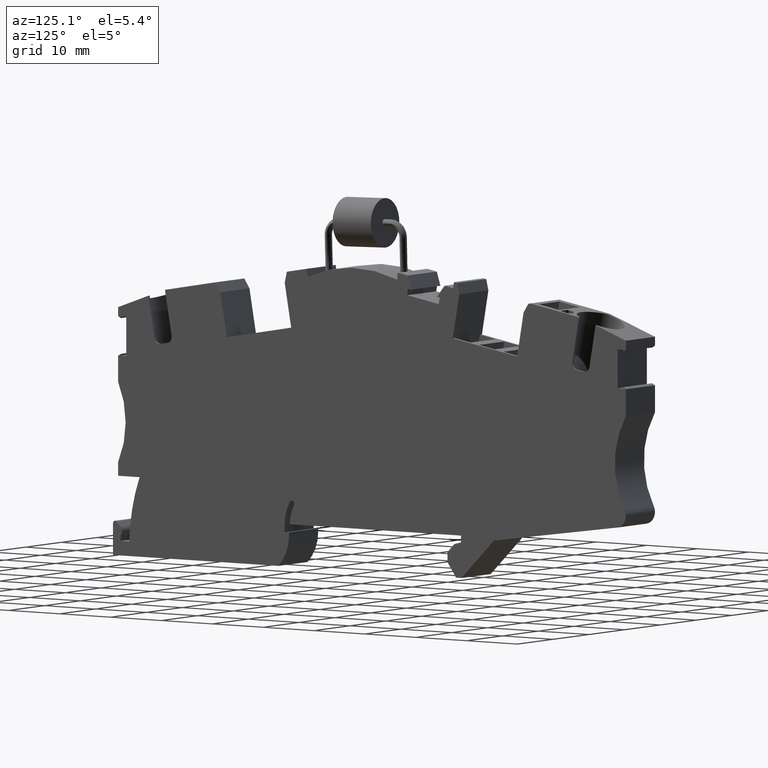
[diagram: clean part render]
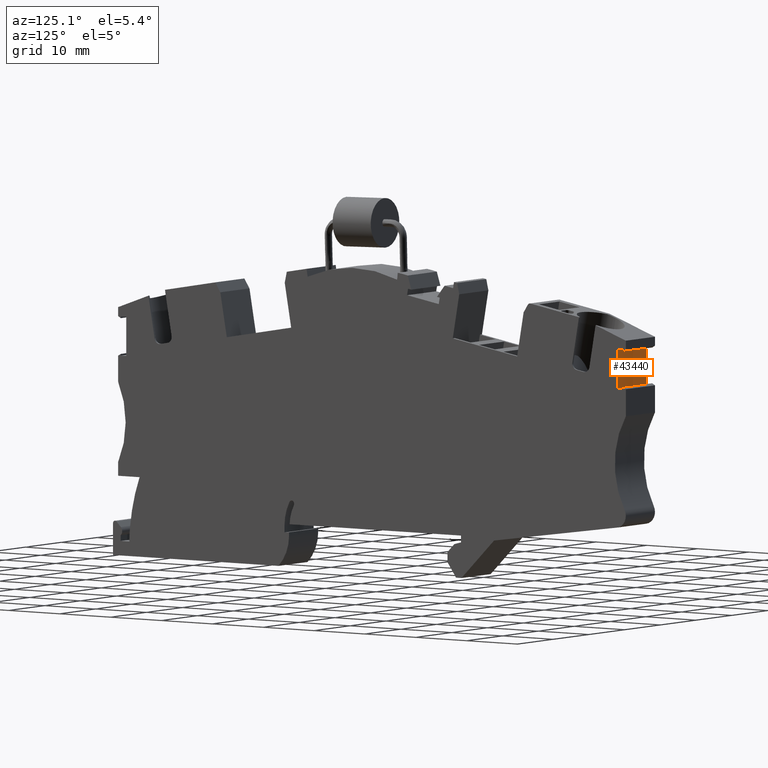
[diagram: same view with one face highlighted and labeled with its STEP entity id]
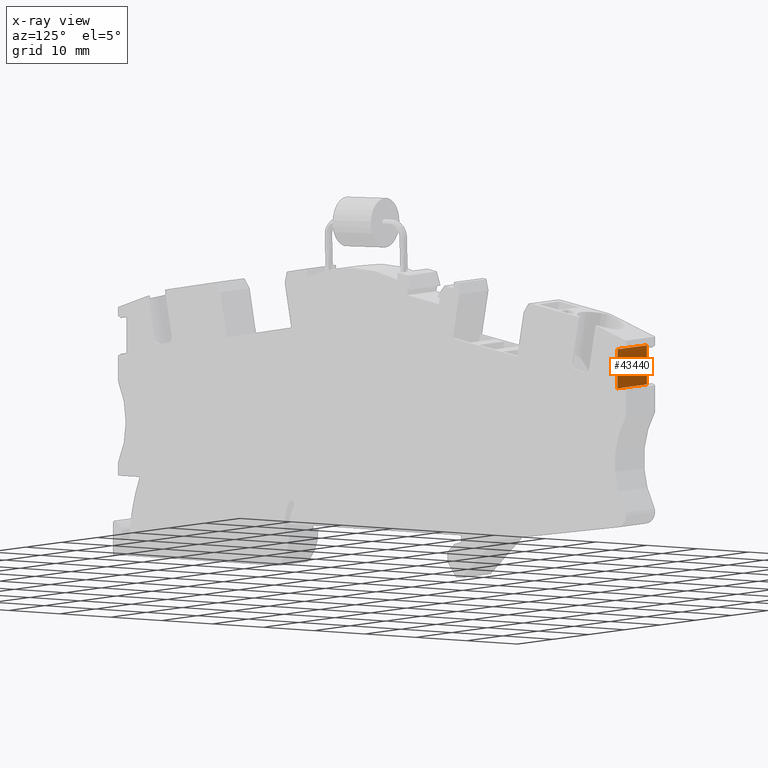
[diagram: x-ray of the same camera — body ghosted, the highlighted face saturated]
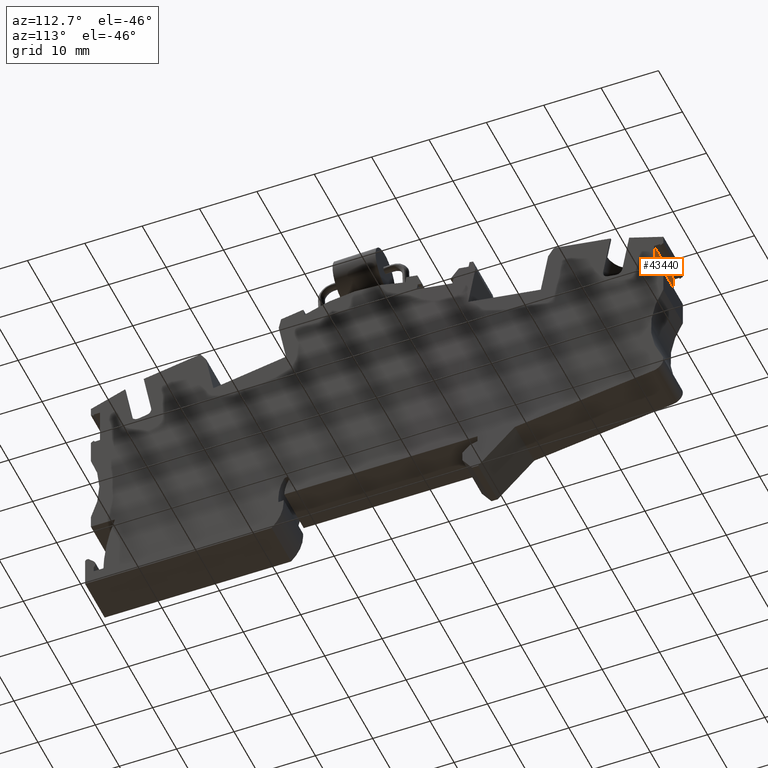
[diagram: same view with one face highlighted and labeled with its STEP entity id]
A machine part, auxiliary view. The second image highlights one B-rep face of the part: STEP entity #43440.
The next image is the same camera in x-ray: the body ghosted, the highlighted face saturated — about 0% of this face is hidden behind the body in this view.
A second angle (auxiliary view) of the same face is appended — the face is thin or edge-on in the first view.
In plain terms, the highlighted planar face has unit normal (-0, 1, 0).
Its self-contained STEP definition (entity closure, byte-faithful):
#4600=CARTESIAN_POINT('',(49.2158450383671,21.6638822171254,
-53.6700000196465));
#4610=VERTEX_POINT('',#4600);
#4640=CARTESIAN_POINT('',(53.0357719801401,-1.49213974509621E-13,
-53.6700000073441));
#4650=DIRECTION('',(-0.173648177667074,0.984807753012183,
-1.19904086659517E-14));
#4660=VECTOR('',#4650,1.);
#4670=LINE('',#4640,#4660);
#4680=CARTESIAN_POINT('',(48.1175203146228,27.8927912549278,
-53.6700000196466));
#4690=VERTEX_POINT('',#4680);
#4700=EDGE_CURVE('',#4610,#4690,#4670,.T.);
#9890=CARTESIAN_POINT('',(48.1175203145913,27.8927912549225,
-45.52000002222));
#9900=VERTEX_POINT('',#9890);
#9930=CARTESIAN_POINT('',(53.0357719804946,-2.19556284264399E-9,
-45.5200000220451));
#9940=DIRECTION('',(-0.173648177667074,0.984807753012183,
-6.17417228454542E-12));
#9950=VECTOR('',#9940,1.);
#9960=LINE('',#9930,#9950);
#9970=CARTESIAN_POINT('',(49.2158450383356,21.6638822171202,
-45.5200000221809));
#9980=VERTEX_POINT('',#9970);
#9990=EDGE_CURVE('',#9980,#9900,#9960,.T.);
#43230=CARTESIAN_POINT('',(48.2476945169935,27.1545366674448,
-45.0049976071475));
#43240=DIRECTION('',(0.984807753012183,0.173648177667074,
3.91802776642407E-12));
#43250=DIRECTION('',(-0.173648177667075,0.984807753012185,
-4.59017210262929E-15));
#43260=AXIS2_PLACEMENT_3D('',#43230,#43240,#43250);
#43270=PLANE('',#43260);
#43280=CARTESIAN_POINT('',(49.2158450381597,21.6638822170909,
-7.22589277302177E-9));
#43290=DIRECTION('',(-3.86482857045591E-12,-6.44490645854438E-13,1.));
#43300=VECTOR('',#43290,1.);
#43310=LINE('',#43280,#43300);
#43320=EDGE_CURVE('',#4610,#9980,#43310,.T.);
#43330=ORIENTED_EDGE('',*,*,#43320,.F.);
#43340=ORIENTED_EDGE('',*,*,#9990,.F.);
#43350=CARTESIAN_POINT('',(48.1175203144153,27.8927912548932,
-7.22589277302177E-9));
#43360=DIRECTION('',(3.86482857045591E-12,6.44490645854437E-13,-1.));
#43370=VECTOR('',#43360,1.);
#43380=LINE('',#43350,#43370);
#43390=EDGE_CURVE('',#9900,#4690,#43380,.T.);
#43400=ORIENTED_EDGE('',*,*,#43390,.F.);
#43410=ORIENTED_EDGE('',*,*,#4700,.T.);
#43420=EDGE_LOOP('',(#43410,#43400,#43340,#43330));
#43430=FACE_OUTER_BOUND('',#43420,.T.);
#43440=ADVANCED_FACE('',(#43430),#43270,.T.);